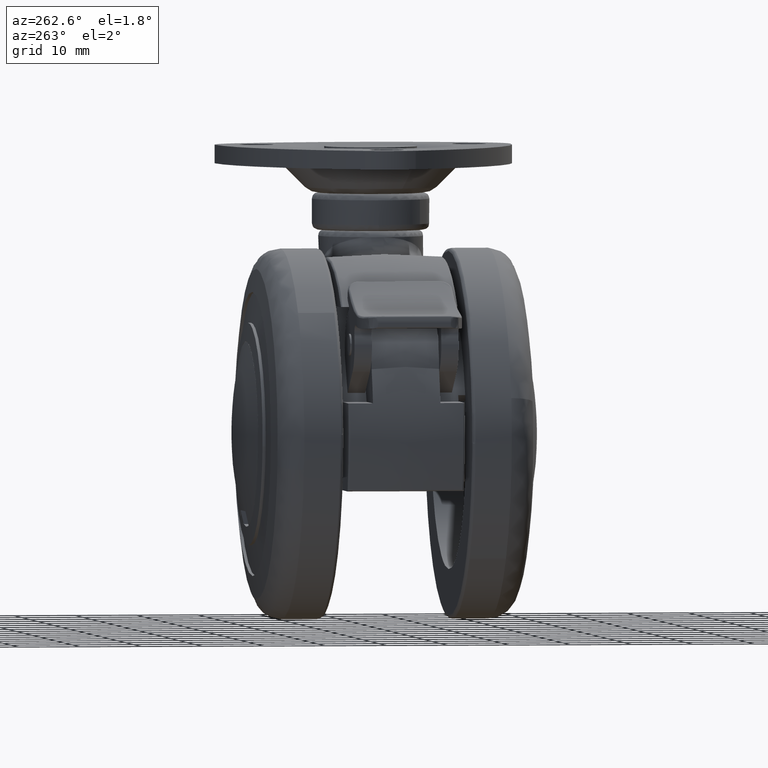
[diagram: clean part render]
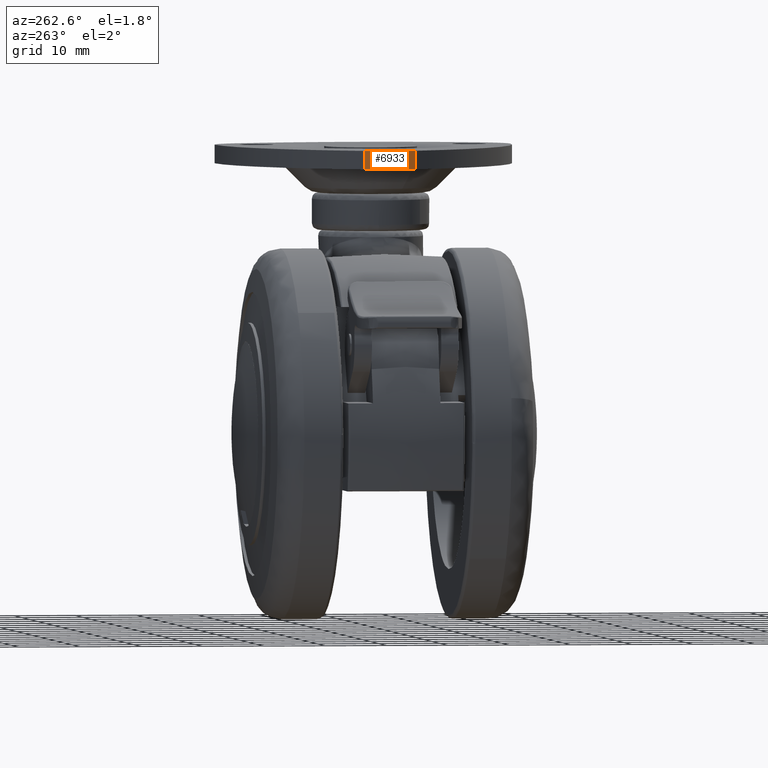
[diagram: same view with one face highlighted and labeled with its STEP entity id]
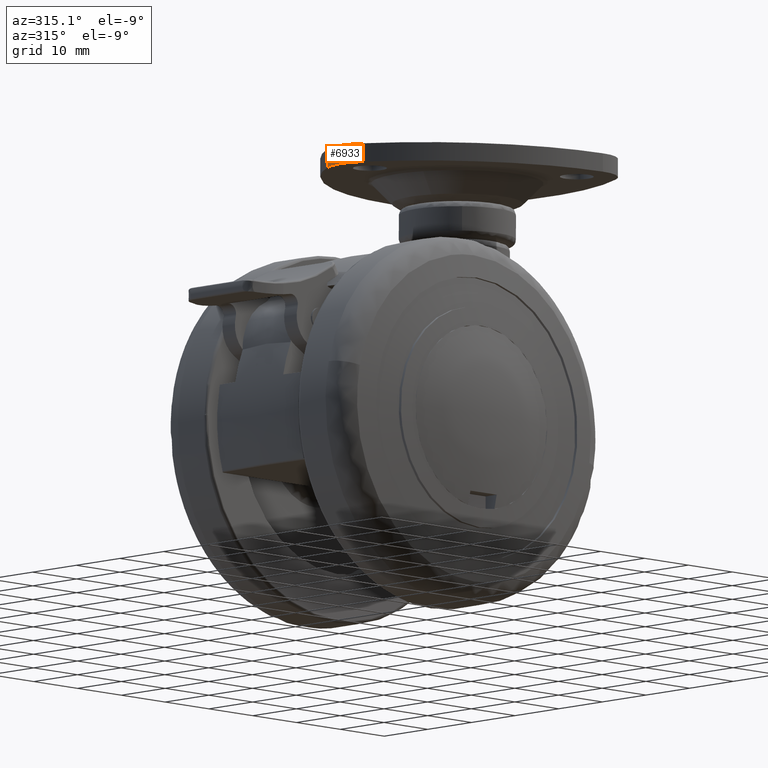
[diagram: same view with one face highlighted and labeled with its STEP entity id]
A machine part, auxiliary view. The second image highlights one B-rep face of the part: STEP entity #6933.
A second angle (auxiliary view) of the same face is appended — the face is thin or edge-on in the first view.
In plain terms, the highlighted face is a freeform B-spline surface patch.
Its self-contained STEP definition (entity closure, byte-faithful):
#6608=CARTESIAN_POINT('',(-8.452562361699592,4.251831279498720,46.0));
#6609=VERTEX_POINT('',#6608);
#6623=CARTESIAN_POINT('',(-8.456269656763912,-4.059117309858815,46.0));
#6624=VERTEX_POINT('',#6623);
#6625=CARTESIAN_POINT('',(-8.452562361699592,4.251831279498720,46.0));
#6626=CARTESIAN_POINT('',(-10.980419690782297,0.097483768469291,46.000000000000007));
#6627=CARTESIAN_POINT('',(-8.456269656763910,-4.059117309858816,46.0));
#6635=(BOUNDED_CURVE()B_SPLINE_CURVE(2,(#6625,#6626,#6627),.UNSPECIFIED.,.F.,.U.)CURVE()GEOMETRIC_REPRESENTATION_ITEM()QUASI_UNIFORM_CURVE()RATIONAL_B_SPLINE_CURVE((1.0,0.854510358958440,1.0))REPRESENTATION_ITEM(''));
#6636=EDGE_CURVE('',#6609,#6624,#6635,.T.);
#6760=CARTESIAN_POINT('',(-8.456269656763912,-4.059117309858815,43.0));
#6761=VERTEX_POINT('',#6760);
#6775=CARTESIAN_POINT('',(-8.452562361699592,4.251831279498720,43.0));
#6776=VERTEX_POINT('',#6775);
#6777=CARTESIAN_POINT('',(-8.452562361699592,4.251831279498720,43.0));
#6778=CARTESIAN_POINT('',(-10.980419690782297,0.097483768469291,43.0));
#6779=CARTESIAN_POINT('',(-8.456269656763910,-4.059117309858816,43.0));
#6787=(BOUNDED_CURVE()B_SPLINE_CURVE(2,(#6777,#6778,#6779),.UNSPECIFIED.,.F.,.U.)CURVE()GEOMETRIC_REPRESENTATION_ITEM()QUASI_UNIFORM_CURVE()RATIONAL_B_SPLINE_CURVE((1.0,0.854510358958440,1.0))REPRESENTATION_ITEM(''));
#6788=EDGE_CURVE('',#6776,#6761,#6787,.T.);
#6899=CARTESIAN_POINT('',(-8.456269656763912,-4.059117309858815,43.0));
#6900=CARTESIAN_POINT('',(-8.456269656763912,-4.059117309858815,46.0));
#6901=QUASI_UNIFORM_CURVE('',1,(#6899,#6900),.UNSPECIFIED.,.F.,.U.);
#6902=EDGE_CURVE('',#6761,#6624,#6901,.T.);
#6909=CARTESIAN_POINT('',(-8.313967422019951,-4.284875764750940,42.924999999999990));
#6910=CARTESIAN_POINT('',(-8.313967422019951,-4.284875764750940,46.076875000000001));
#6911=CARTESIAN_POINT('',(-11.237750660377078,0.186517356546990,42.924999999999990));
#6912=CARTESIAN_POINT('',(-11.237750660377078,0.186517356546990,46.076875000000001));
#6913=CARTESIAN_POINT('',(-8.227871532301736,4.600415011054280,42.924999999999990));
#6914=CARTESIAN_POINT('',(-8.227871532301736,4.600415011054280,46.076875000000008));
#6922=(BOUNDED_SURFACE()B_SPLINE_SURFACE(1,2,((#6909,#6911,#6913),(#6910,#6912,#6914)),.UNSPECIFIED.,.F.,.F.,.U.)B_SPLINE_SURFACE_WITH_KNOTS((2,2),(3,3),(0.0,3.151875000000013),(0.0,9.702564828401004),.UNSPECIFIED.)GEOMETRIC_REPRESENTATION_ITEM()RATIONAL_B_SPLINE_SURFACE(((1.0,0.828253592150519,0.991938916610590),(1.0,0.828253592150519,0.991938916610590)))REPRESENTATION_ITEM('')SURFACE());
#6923=ORIENTED_EDGE('',*,*,#6636,.F.);
#6924=CARTESIAN_POINT('',(-8.452562361699592,4.251831279498720,43.0));
#6925=CARTESIAN_POINT('',(-8.452562361699592,4.251831279498720,46.0));
#6926=QUASI_UNIFORM_CURVE('',1,(#6924,#6925),.UNSPECIFIED.,.F.,.U.);
#6927=EDGE_CURVE('',#6776,#6609,#6926,.T.);
#6928=ORIENTED_EDGE('',*,*,#6927,.F.);
#6929=ORIENTED_EDGE('',*,*,#6788,.T.);
#6930=ORIENTED_EDGE('',*,*,#6902,.T.);
#6931=EDGE_LOOP('',(#6923,#6928,#6929,#6930));
#6932=FACE_OUTER_BOUND('',#6931,.T.);
#6933=ADVANCED_FACE('',(#6932),#6922,.T.);